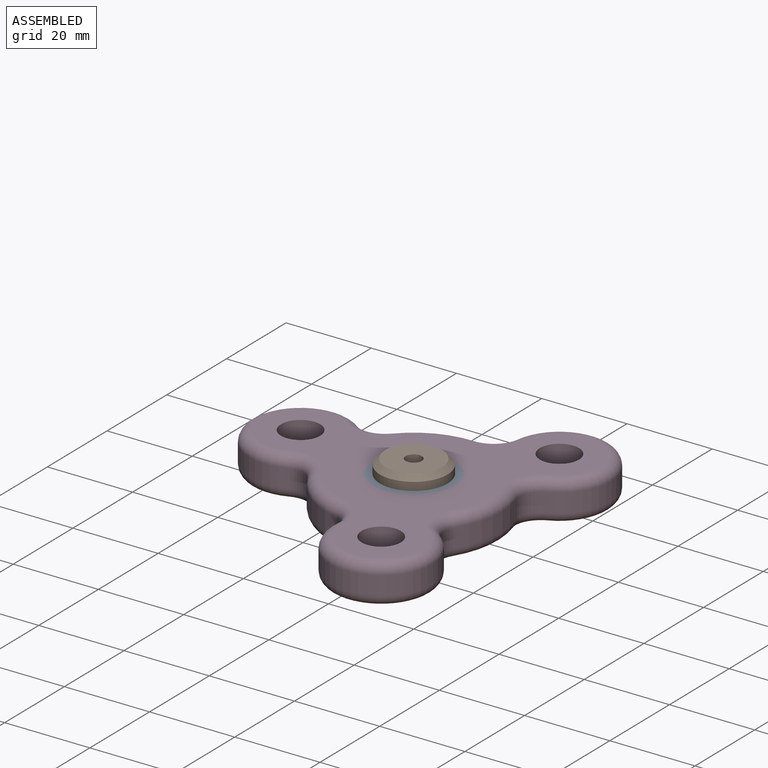
[diagram: assembled view]
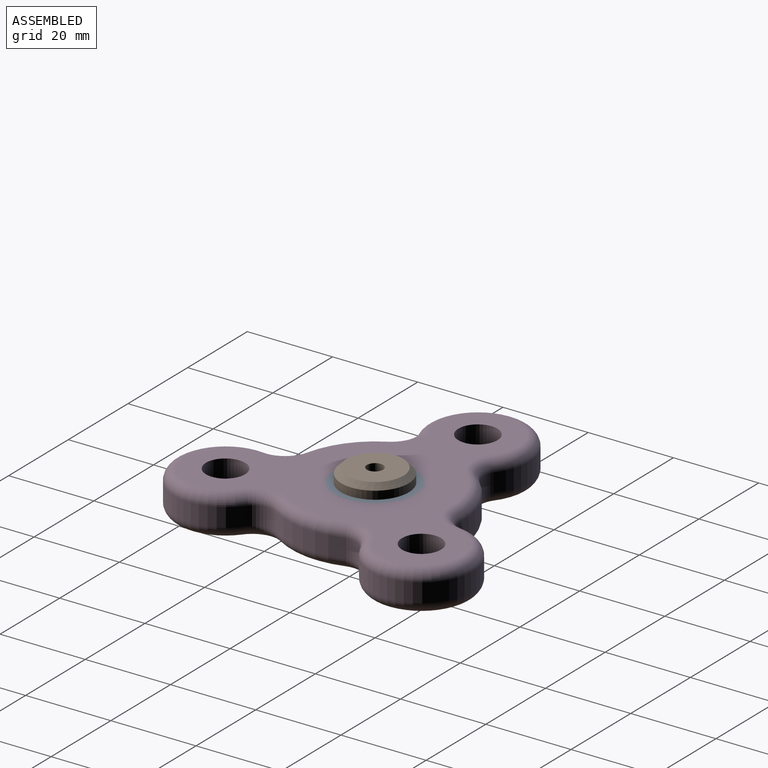
[diagram: assembled view, second angle]
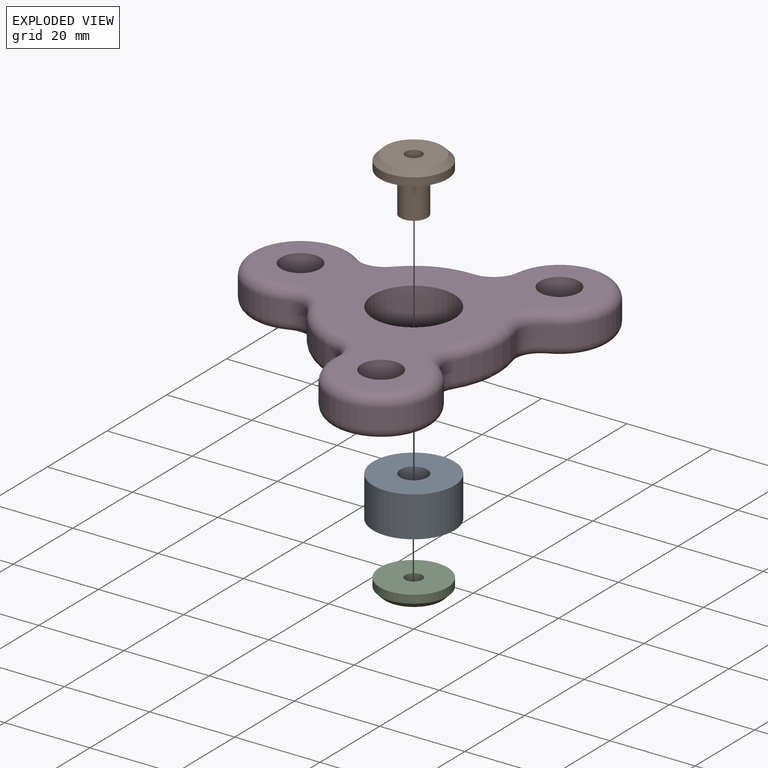
[diagram: exploded view]
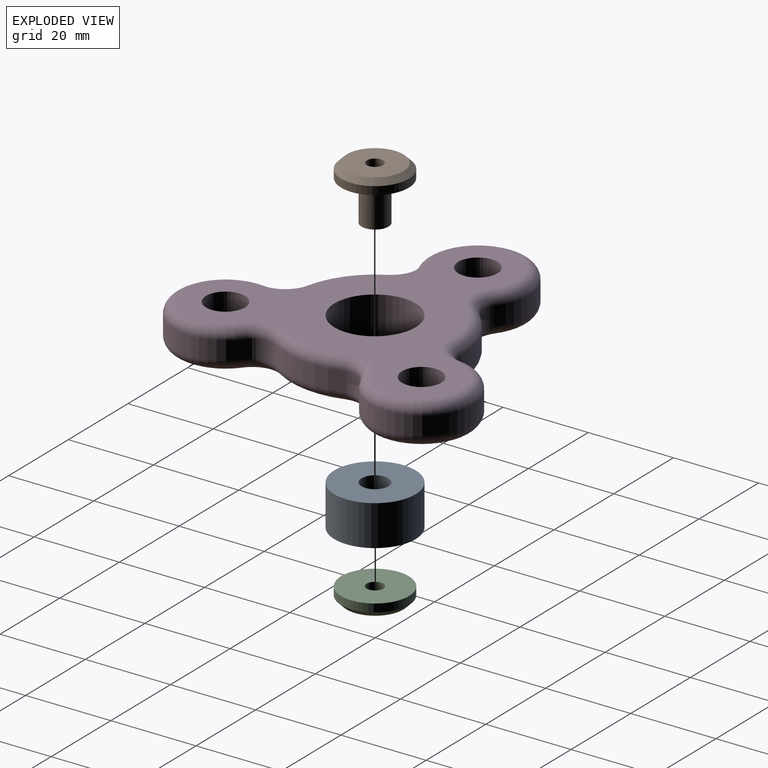
[diagram: exploded view, second angle]
ASSEMBLY  parts=4 mates=3
PART A: 4 faces, bbox 19.1x19.1x9.5 mm
  f0: cylinder r=3.17mm len=9.53mm, axis (0,0,1), area 190mm2, adj f2,f3
  f1: cylinder r=9.53mm len=19.05mm, axis (0,0,1), area 570mm2, adj f2,f3
  f2: plane 19.05x19.05mm, normal (0,0,-1), area 253.4mm2, adj f0,f1
  f3: plane 19.05x19.05mm, normal (0,0,1), area 253.4mm2, adj f0,f1
PART B: 7 faces, bbox 15.9x15.9x12.7 mm
  f0: cylinder r=7.94mm len=15.88mm, axis (0,0,-1), area 95mm2, adj f3,f6
  f1: cylinder r=1.91mm len=12.7mm, axis (0,0,-1), area 152mm2, adj f2,f4
  f2: plane 13.34x13.34mm, normal (0,0,1), area 128.3mm2, adj f1,f6
  f3: plane 15.88x15.88mm, normal (0,0,-1), area 166.3mm2, adj f0,f5
  f4: plane 6.35x6.35mm, normal (0,0,-1), area 20.3mm2, adj f1,f5
  f5: cylinder r=3.17mm len=9.53mm, axis (0,0,1), area 190mm2, adj f3,f4
  f6: cone r=6.67mm half-angle=45deg, axis (0,0,-1), area 82.4mm2, adj f0,f2
PART C: 5 faces, bbox 15.9x15.9x3.2 mm
  f0: cylinder r=7.94mm len=15.88mm, axis (0,0,1), area 95mm2, adj f3,f4
  f1: cylinder r=1.97mm len=3.94mm, axis (0,0,1), area 39.3mm2, adj f2,f3
  f2: plane 13.34x13.34mm, normal (0,0,-1), area 127.5mm2, adj f1,f4
  f3: plane 15.88x15.88mm, normal (0,0,1), area 185.8mm2, adj f0,f1
  f4: cone r=6.67mm half-angle=45deg, axis (0,0,1), area 82.4mm2, adj f0,f2
PART D: 42 faces, bbox 77x70.2x9.5 mm
  f0: cylinder r=12.05mm len=24.09mm, axis (0,0,-1), area 223.8mm2, adj f12,f13,f25,f33
  f1: cylinder r=20.58mm len=17.12mm, axis (0,0,-1), area 78.5mm2, adj f13,f14,f29,f37
  f2: cylinder r=12.05mm len=24.09mm, axis (0,0,-1), area 223.8mm2, adj f14,f15,f26,f41
  f3: cylinder r=20.58mm len=14.83mm, axis (0,0,-1), area 78.5mm2, adj f15,f17,f22,f38
  f4: cylinder r=12.05mm len=24.09mm, axis (0,0,-1), area 223.8mm2, adj f16,f17,f18,f34
  f5: cylinder r=9.53mm len=19.05mm, axis (0,0,-1), area 570mm2, adj f10,f11
  f6: cylinder r=4.59mm len=9.53mm, axis (0,0,-1), area 274.9mm2, adj f10,f11
  f7: cylinder r=4.59mm len=9.53mm, axis (0,0,-1), area 274.9mm2, adj f10,f11
  f8: cylinder r=20.58mm len=14.83mm, axis (0,0,-1), area 78.5mm2, adj f12,f16,f21,f30
  f9: cylinder r=4.59mm len=9.53mm, axis (0,0,-1), area 274.9mm2, adj f10,f11
  f10: plane 69.95x63.12mm, normal (0,0,1), area 1556.7mm2, adj f5,f6,f7,f9,f30,f31,f32,f33
  f11: plane 69.95x63.12mm, normal (0,0,-1), area 1556.7mm2, adj f5,f6,f7,f9,f18,f19,f20,f21
  f12: cylinder r=5.08mm len=5.04mm, axis (0,0,1), area 33.2mm2, adj f0,f8,f23,f31
  f13: cylinder r=5.08mm len=6.5mm, axis (0,0,1), area 33.2mm2, adj f0,f1,f27,f35
  f14: cylinder r=5.08mm len=6.5mm, axis (0,0,1), area 33.2mm2, adj f1,f2,f28,f39
  f15: cylinder r=5.08mm len=5.04mm, axis (0,0,1), area 33.2mm2, adj f2,f3,f24,f40
  f16: cylinder r=5.08mm len=6.66mm, axis (0,0,1), area 33.2mm2, adj f4,f8,f19,f32
  f17: cylinder r=5.08mm len=6.66mm, axis (0,0,1), area 33.2mm2, adj f3,f4,f20,f36
  f18: torus R=9.51mm, axis (0,0,1), area 185.5mm2, adj f4,f11,f19,f20
  f19: torus R=7.62mm, axis (0,0,1), area 35.3mm2, adj f11,f16,f18,f21
  f20: torus R=7.62mm, axis (0,0,1), area 35.3mm2, adj f11,f17,f18,f22
  f21: torus R=18.04mm, axis (0,0,1), area 67.3mm2, adj f8,f11,f19,f23
  f22: torus R=18.04mm, axis (0,0,1), area 67.3mm2, adj f3,f11,f20,f24
  f23: torus R=7.62mm, axis (0,0,1), area 35.3mm2, adj f11,f12,f21,f25
  f24: torus R=7.62mm, axis (0,0,1), area 35.3mm2, adj f11,f15,f22,f26
  f25: torus R=9.51mm, axis (0,0,1), area 185.5mm2, adj f0,f11,f23,f27
  f26: torus R=9.51mm, axis (0,0,1), area 185.5mm2, adj f2,f11,f24,f28
  f27: torus R=7.62mm, axis (0,0,1), area 35.3mm2, adj f11,f13,f25,f29
  f28: torus R=7.62mm, axis (0,0,1), area 35.3mm2, adj f11,f14,f26,f29
  f29: torus R=18.04mm, axis (0,0,1), area 67.3mm2, adj f1,f11,f27,f28
  f30: torus R=18.04mm, axis (0,0,1), area 67.3mm2, adj f8,f10,f31,f32
  f31: torus R=7.62mm, axis (0,0,1), area 35.3mm2, adj f10,f12,f30,f33
  f32: torus R=7.62mm, axis (0,0,1), area 35.3mm2, adj f10,f16,f30,f34
  f33: torus R=9.51mm, axis (0,0,1), area 185.5mm2, adj f0,f10,f31,f35
  f34: torus R=9.51mm, axis (0,0,1), area 185.5mm2, adj f4,f10,f32,f36
  f35: torus R=7.62mm, axis (0,0,1), area 35.3mm2, adj f10,f13,f33,f37
  f36: torus R=7.62mm, axis (0,0,1), area 35.3mm2, adj f10,f17,f34,f38
  f37: torus R=18.04mm, axis (0,0,1), area 67.3mm2, adj f1,f10,f35,f39
  f38: torus R=18.04mm, axis (0,0,1), area 67.3mm2, adj f3,f10,f36,f40
  f39: torus R=7.62mm, axis (0,0,1), area 35.3mm2, adj f10,f14,f37,f41
  f40: torus R=7.62mm, axis (0,0,1), area 35.3mm2, adj f10,f15,f38,f41
  f41: torus R=9.51mm, axis (0,0,1), area 185.5mm2, adj f2,f10,f39,f40
PLACE A at identity
PLACE B at identity
PLACE C at identity
PLACE D rot(axis=(0,0,-1),97.3deg) t=(0,0,0)mm
MATE fastened B.f5 <-> A.f1  axis (0,0,-1) through (0,0,0)mm
MATE revolute D.f5 <-> A.f1  axis (0,0,-1) through (0,0,9.52)mm
MATE fastened C.f1 <-> A.f1  axis (0,0,1) through (0,0,0)mm
